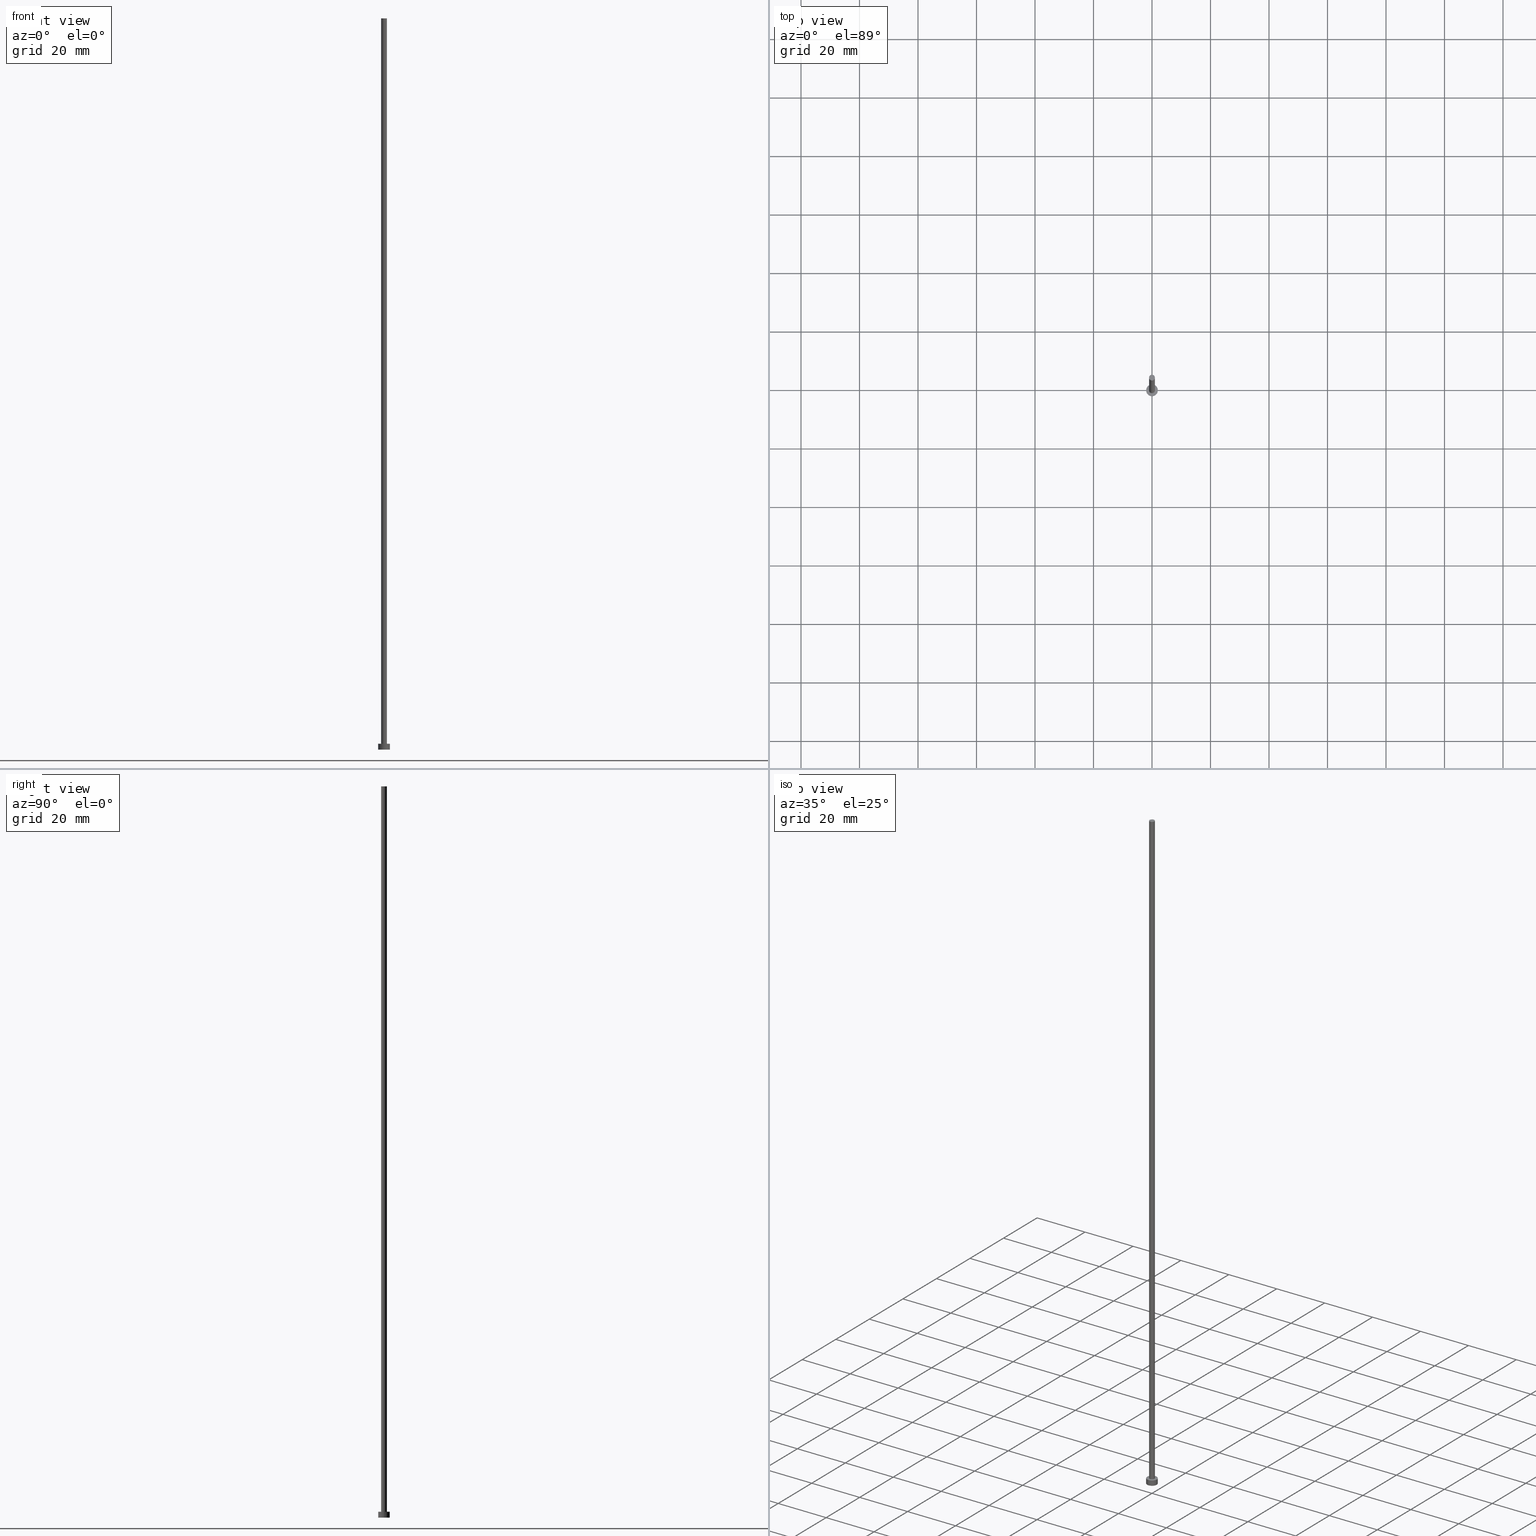
[diagram: canonical four-view strip — front | top / right | iso, engineering-drawing reading convention]
A machine part, canonical four-view strip (front | top / right | iso — engineering-drawing reading convention). The complete STEP part file that produces these views, byte-faithful:
ISO-10303-21;
HEADER;
FILE_DESCRIPTION (( 'STEP AP203' ),
    '1' );
FILE_NAME ('683c.STEP',
    '2023-02-13T15:59:17',
    ( '' ),
    ( '' ),
    'SwSTEP 2.0',
    'SolidWorks 2019',
    '' );
FILE_SCHEMA (( 'CONFIG_CONTROL_DESIGN' ));
ENDSEC;

DATA;
#1 = CARTESIAN_POINT ( 'NONE',  ( 0.000000000000000000, 0.000000000000000000, 250.0000000000000000 ) ) ;
#2 = DIRECTION ( 'NONE',  ( 1.000000000000000000, 0.000000000000000000, 0.000000000000000000 ) ) ;
#3 = ADVANCED_FACE ( 'NONE', ( #188, #170 ), #250, .T. ) ;
#4 = CC_DESIGN_SECURITY_CLASSIFICATION ( #212, ( #181 ) ) ;
#5 =( LENGTH_UNIT ( ) NAMED_UNIT ( * ) SI_UNIT ( .MILLI., .METRE. ) );
#6 = CIRCLE ( 'NONE', #130, 1.000000000000000000 ) ;
#7 = APPROVAL_STATUS ( 'not_yet_approved' ) ;
#8 = CIRCLE ( 'NONE', #129, 1.000000000000000000 ) ;
#9 = PERSON_AND_ORGANIZATION_ROLE ( 'classification_officer' ) ;
#10 = DATE_AND_TIME ( #183, #81 ) ;
#11 = ORIENTED_EDGE ( 'NONE', *, *, #229, .F. ) ;
#12 = ORIENTED_EDGE ( 'NONE', *, *, #214, .F. ) ;
#13 = AXIS2_PLACEMENT_3D ( 'NONE', #71, #153, #227 ) ;
#14 = ORIENTED_EDGE ( 'NONE', *, *, #84, .T. ) ;
#15 = LOCAL_TIME ( 16, 59, 17.00000000000000000, #108 ) ;
#16 = CARTESIAN_POINT ( 'NONE',  ( 0.000000000000000000, 0.000000000000000000, 0.000000000000000000 ) ) ;
#17 = CYLINDRICAL_SURFACE ( 'NONE', #57, 1.000000000000000000 ) ;
#18 = SHAPE_DEFINITION_REPRESENTATION ( #172, #109 ) ;
#19 = DIRECTION ( 'NONE',  ( 0.000000000000000000, 0.000000000000000000, 1.000000000000000000 ) ) ;
#20 = CARTESIAN_POINT ( 'NONE',  ( 2.000000000000000000, 2.449293598294706414E-16, 0.000000000000000000 ) ) ;
#21 = LINE ( 'NONE', #102, #220 ) ;
#22 = DIRECTION ( 'NONE',  ( 0.000000000000000000, 0.000000000000000000, 1.000000000000000000 ) ) ;
#23 = PERSON_AND_ORGANIZATION ( #248, #163 ) ;
#24 = EDGE_CURVE ( 'NONE', #114, #112, #200, .T. ) ;
#25 = PERSON_AND_ORGANIZATION_ROLE ( 'creator' ) ;
#26 = APPROVAL_ROLE ( '' ) ;
#27 = AXIS2_PLACEMENT_3D ( 'NONE', #196, #98, #210 ) ;
#28 = ADVANCED_FACE ( 'NONE', ( #64 ), #222, .T. ) ;
#29 = VERTEX_POINT ( 'NONE', #211 ) ;
#30 = ORIENTED_EDGE ( 'NONE', *, *, #235, .F. ) ;
#31 = EDGE_CURVE ( 'NONE', #226, #29, #76, .T. ) ;
#32 = ORIENTED_EDGE ( 'NONE', *, *, #235, .T. ) ;
#33 = DIRECTION ( 'NONE',  ( 1.000000000000000000, 0.000000000000000000, 0.000000000000000000 ) ) ;
#34 = UNCERTAINTY_MEASURE_WITH_UNIT (LENGTH_MEASURE( 1.000000000000000082E-05 ), #5, 'distance_accuracy_value', 'NONE');
#35 = DIRECTION ( 'NONE',  ( -0.000000000000000000, -0.000000000000000000, -1.000000000000000000 ) ) ;
#36 = DIRECTION ( 'NONE',  ( -0.000000000000000000, -0.000000000000000000, -1.000000000000000000 ) ) ;
#37 = LOCAL_TIME ( 16, 59, 17.00000000000000000, #147 ) ;
#38 = EDGE_CURVE ( 'NONE', #29, #247, #139, .T. ) ;
#39 = CARTESIAN_POINT ( 'NONE',  ( 0.000000000000000000, 0.000000000000000000, 250.0000000000000000 ) ) ;
#40 = DIRECTION ( 'NONE',  ( 1.000000000000000000, 0.000000000000000000, -0.000000000000000000 ) ) ;
#41 = APPROVAL ( #42, 'NEUR�EN�' ) ;
#42 = APPROVAL_STATUS ( 'not_yet_approved' ) ;
#43 = CARTESIAN_POINT ( 'NONE',  ( -2.000000000000000000, 0.000000000000000000, 0.000000000000000000 ) ) ;
#44 = DIRECTION ( 'NONE',  ( 1.000000000000000000, 0.000000000000000000, 0.000000000000000000 ) ) ;
#45 = PERSON_AND_ORGANIZATION_ROLE ( 'creator' ) ;
#46 = AXIS2_PLACEMENT_3D ( 'NONE', #79, #177, #118 ) ;
#47 = ORIENTED_EDGE ( 'NONE', *, *, #204, .F. ) ;
#48 = ORIENTED_EDGE ( 'NONE', *, *, #204, .T. ) ;
#49 = EDGE_LOOP ( 'NONE', ( #206, #184, #187, #117 ) ) ;
#50 = CARTESIAN_POINT ( 'NONE',  ( 0.000000000000000000, 0.000000000000000000, 2.000000000000000000 ) ) ;
#51 = LINE ( 'NONE', #97, #159 ) ;
#52 = CYLINDRICAL_SURFACE ( 'NONE', #141, 2.000000000000000000 ) ;
#53 = DIRECTION ( 'NONE',  ( -1.000000000000000000, 0.000000000000000000, 0.000000000000000000 ) ) ;
#54 = DIRECTION ( 'NONE',  ( -0.000000000000000000, -0.000000000000000000, -1.000000000000000000 ) ) ;
#55 = CC_DESIGN_APPROVAL ( #99, ( #179 ) ) ;
#56 = CARTESIAN_POINT ( 'NONE',  ( 0.000000000000000000, 0.000000000000000000, 2.000000000000000000 ) ) ;
#57 = AXIS2_PLACEMENT_3D ( 'NONE', #1, #36, #192 ) ;
#58 = APPROVAL_DATE_TIME ( #242, #99 ) ;
#59 = PERSON_AND_ORGANIZATION ( #248, #163 ) ;
#60 = APPROVAL_DATE_TIME ( #144, #41 ) ;
#61 = DATE_AND_TIME ( #219, #37 ) ;
#62 = APPROVAL_STATUS ( 'not_yet_approved' ) ;
#63 = APPROVAL_ROLE ( '' ) ;
#64 = FACE_OUTER_BOUND ( 'NONE', #244, .T. ) ;
#65 = ADVANCED_FACE ( 'NONE', ( #213 ), #17, .T. ) ;
#66 = ORIENTED_EDGE ( 'NONE', *, *, #80, .T. ) ;
#67 = VERTEX_POINT ( 'NONE', #253 ) ;
#68 = APPROVAL_PERSON_ORGANIZATION ( #59, #41, #124 ) ;
#69 = ORIENTED_EDGE ( 'NONE', *, *, #113, .T. ) ;
#70 = DESIGN_CONTEXT ( 'detailed design', #151, 'design' ) ;
#71 = CARTESIAN_POINT ( 'NONE',  ( 0.000000000000000000, 0.000000000000000000, 2.000000000000000000 ) ) ;
#72 = CC_DESIGN_PERSON_AND_ORGANIZATION_ASSIGNMENT ( #238, #25, ( #179 ) ) ;
#73 = CARTESIAN_POINT ( 'NONE',  ( 0.000000000000000000, 0.000000000000000000, 2.000000000000000000 ) ) ;
#74 = DIRECTION ( 'NONE',  ( -0.000000000000000000, -0.000000000000000000, -1.000000000000000000 ) ) ;
#75 = CIRCLE ( 'NONE', #46, 2.000000000000000000 ) ;
#76 = CIRCLE ( 'NONE', #96, 2.000000000000000000 ) ;
#77 = CARTESIAN_POINT ( 'NONE',  ( 2.000000000000000000, 2.449293598294706414E-16, 2.000000000000000000 ) ) ;
#78 = LINE ( 'NONE', #121, #149 ) ;
#79 = CARTESIAN_POINT ( 'NONE',  ( 0.000000000000000000, 0.000000000000000000, 0.000000000000000000 ) ) ;
#80 = EDGE_CURVE ( 'NONE', #112, #114, #6, .T. ) ;
#81 = LOCAL_TIME ( 16, 59, 17.00000000000000000, #175 ) ;
#82 = AXIS2_PLACEMENT_3D ( 'NONE', #39, #35, #53 ) ;
#83 = CARTESIAN_POINT ( 'NONE',  ( 0.000000000000000000, 0.000000000000000000, 250.0000000000000000 ) ) ;
#84 = EDGE_CURVE ( 'NONE', #91, #112, #78, .T. ) ;
#85 = PERSON_AND_ORGANIZATION ( #248, #163 ) ;
#86 = COORDINATED_UNIVERSAL_TIME_OFFSET ( 1, 0, .AHEAD. ) ;
#87 = APPROVAL_DATE_TIME ( #10, #246 ) ;
#88 = EDGE_LOOP ( 'NONE', ( #169, #111 ) ) ;
#89 = ADVANCED_FACE ( 'NONE', ( #173 ), #52, .T. ) ;
#90 = AXIS2_PLACEMENT_3D ( 'NONE', #56, #135, #209 ) ;
#91 = VERTEX_POINT ( 'NONE', #154 ) ;
#92 = ORIENTED_EDGE ( 'NONE', *, *, #214, .T. ) ;
#93 = LOCAL_TIME ( 16, 59, 17.00000000000000000, #86 ) ;
#94 = CC_DESIGN_PERSON_AND_ORGANIZATION_ASSIGNMENT ( #23, #45, ( #181 ) ) ;
#95 = ORIENTED_EDGE ( 'NONE', *, *, #38, .F. ) ;
#96 = AXIS2_PLACEMENT_3D ( 'NONE', #155, #174, #2 ) ;
#97 = CARTESIAN_POINT ( 'NONE',  ( -1.000000000000000000, 0.000000000000000000, 250.0000000000000000 ) ) ;
#98 = DIRECTION ( 'NONE',  ( 0.000000000000000000, 0.000000000000000000, 1.000000000000000000 ) ) ;
#99 = APPROVAL ( #62, 'NEUR�EN�' ) ;
#100 = DIRECTION ( 'NONE',  ( 1.000000000000000000, 0.000000000000000000, -0.000000000000000000 ) ) ;
#101 = DIRECTION ( 'NONE',  ( 1.000000000000000000, 0.000000000000000000, 0.000000000000000000 ) ) ;
#102 = CARTESIAN_POINT ( 'NONE',  ( 2.000000000000000000, 2.449293598294706414E-16, 2.000000000000000000 ) ) ;
#103 = DATE_AND_TIME ( #198, #93 ) ;
#104 = DATE_TIME_ROLE ( 'classification_date' ) ;
#105 = PERSON_AND_ORGANIZATION ( #248, #163 ) ;
#106 = DIRECTION ( 'NONE',  ( 0.000000000000000000, 0.000000000000000000, 1.000000000000000000 ) ) ;
#107 = APPROVAL_PERSON_ORGANIZATION ( #180, #246, #63 ) ;
#108 = COORDINATED_UNIVERSAL_TIME_OFFSET ( 1, 0, .AHEAD. ) ;
#109 = ADVANCED_BREP_SHAPE_REPRESENTATION ( '683c', ( #193, #254 ), #110 ) ;
#110 =( GEOMETRIC_REPRESENTATION_CONTEXT ( 3 ) GLOBAL_UNCERTAINTY_ASSIGNED_CONTEXT ( ( #34 ) ) GLOBAL_UNIT_ASSIGNED_CONTEXT ( ( #5, #237, #161 ) ) REPRESENTATION_CONTEXT ( 'NONE', 'WORKASPACE' ) );
#111 = ORIENTED_EDGE ( 'NONE', *, *, #80, .F. ) ;
#112 = VERTEX_POINT ( 'NONE', #137 ) ;
#113 = EDGE_CURVE ( 'NONE', #29, #226, #136, .T. ) ;
#114 = VERTEX_POINT ( 'NONE', #228 ) ;
#115 = PRODUCT ( '683c', '683c', '', ( #218 ) ) ;
#116 = CC_DESIGN_APPROVAL ( #246, ( #212 ) ) ;
#117 = ORIENTED_EDGE ( 'NONE', *, *, #24, .T. ) ;
#118 = DIRECTION ( 'NONE',  ( 1.000000000000000000, 0.000000000000000000, 0.000000000000000000 ) ) ;
#119 = ADVANCED_FACE ( 'NONE', ( #197 ), #232, .T. ) ;
#120 = CARTESIAN_POINT ( 'NONE',  ( 0.000000000000000000, 0.000000000000000000, 250.0000000000000000 ) ) ;
#121 = CARTESIAN_POINT ( 'NONE',  ( 1.000000000000000000, 1.224646799147353207E-16, 250.0000000000000000 ) ) ;
#122 = LOCAL_TIME ( 16, 59, 17.00000000000000000, #164 ) ;
#123 = DIRECTION ( 'NONE',  ( 0.000000000000000000, 0.000000000000000000, 1.000000000000000000 ) ) ;
#124 = APPROVAL_ROLE ( '' ) ;
#125 = AXIS2_PLACEMENT_3D ( 'NONE', #83, #106, #44 ) ;
#126 = APPLICATION_PROTOCOL_DEFINITION ( 'international standard', 'config_control_design', 1994, #146 ) ;
#127 = CC_DESIGN_DATE_AND_TIME_ASSIGNMENT ( #61, #143, ( #179 ) ) ;
#128 = PERSON_AND_ORGANIZATION_ROLE ( 'design_supplier' ) ;
#129 = AXIS2_PLACEMENT_3D ( 'NONE', #120, #123, #101 ) ;
#130 = AXIS2_PLACEMENT_3D ( 'NONE', #252, #230, #33 ) ;
#131 = CARTESIAN_POINT ( 'NONE',  ( 0.000000000000000000, 0.000000000000000000, 250.0000000000000000 ) ) ;
#132 = EDGE_LOOP ( 'NONE', ( #224, #92, #48, #95 ) ) ;
#133 = CC_DESIGN_PERSON_AND_ORGANIZATION_ASSIGNMENT ( #162, #128, ( #181 ) ) ;
#134 = DIRECTION ( 'NONE',  ( 0.000000000000000000, 0.000000000000000000, 1.000000000000000000 ) ) ;
#135 = DIRECTION ( 'NONE',  ( -0.000000000000000000, -0.000000000000000000, -1.000000000000000000 ) ) ;
#136 = CIRCLE ( 'NONE', #27, 2.000000000000000000 ) ;
#137 = CARTESIAN_POINT ( 'NONE',  ( 1.000000000000000000, 1.224646799147353207E-16, 2.000000000000000000 ) ) ;
#138 = FACE_OUTER_BOUND ( 'NONE', #132, .T. ) ;
#139 = LINE ( 'NONE', #255, #236 ) ;
#140 = CC_DESIGN_PERSON_AND_ORGANIZATION_ASSIGNMENT ( #182, #9, ( #212 ) ) ;
#141 = AXIS2_PLACEMENT_3D ( 'NONE', #73, #74, #157 ) ;
#142 = CYLINDRICAL_SURFACE ( 'NONE', #90, 2.000000000000000000 ) ;
#143 = DATE_TIME_ROLE ( 'creation_date' ) ;
#144 = DATE_AND_TIME ( #217, #15 ) ;
#145 = CLOSED_SHELL ( 'NONE', ( #65, #195, #89, #3, #221, #119, #28 ) ) ;
#146 = APPLICATION_CONTEXT ( 'configuration controlled 3d designs of mechanical parts and assemblies' ) ;
#147 = COORDINATED_UNIVERSAL_TIME_OFFSET ( 1, 0, .AHEAD. ) ;
#148 = DIRECTION ( 'NONE',  ( 1.000000000000000000, 0.000000000000000000, 0.000000000000000000 ) ) ;
#149 = VECTOR ( 'NONE', #54, 1000.000000000000000 ) ;
#150 = ORIENTED_EDGE ( 'NONE', *, *, #38, .T. ) ;
#151 = APPLICATION_CONTEXT ( 'configuration controlled 3d designs of mechanical parts and assemblies' ) ;
#152 = ORIENTED_EDGE ( 'NONE', *, *, #171, .F. ) ;
#153 = DIRECTION ( 'NONE',  ( 0.000000000000000000, 0.000000000000000000, 1.000000000000000000 ) ) ;
#154 = CARTESIAN_POINT ( 'NONE',  ( 1.000000000000000000, 1.224646799147353207E-16, 250.0000000000000000 ) ) ;
#155 = CARTESIAN_POINT ( 'NONE',  ( 0.000000000000000000, 0.000000000000000000, 2.000000000000000000 ) ) ;
#156 = DIRECTION ( 'NONE',  ( 1.000000000000000000, 0.000000000000000000, 0.000000000000000000 ) ) ;
#157 = DIRECTION ( 'NONE',  ( -1.000000000000000000, 0.000000000000000000, 0.000000000000000000 ) ) ;
#158 = DIRECTION ( 'NONE',  ( -0.000000000000000000, -0.000000000000000000, -1.000000000000000000 ) ) ;
#159 = VECTOR ( 'NONE', #178, 1000.000000000000000 ) ;
#160 = PRODUCT_RELATED_PRODUCT_CATEGORY ( 'detail', '', ( #115 ) ) ;
#161 =( NAMED_UNIT ( * ) SI_UNIT ( $, .STERADIAN. ) SOLID_ANGLE_UNIT ( ) );
#162 = PERSON_AND_ORGANIZATION ( #248, #163 ) ;
#163 = ORGANIZATION ( 'NEUR�EN�', 'NEUR�EN�', '' ) ;
#164 = COORDINATED_UNIVERSAL_TIME_OFFSET ( 1, 0, .AHEAD. ) ;
#165 = APPLICATION_PROTOCOL_DEFINITION ( 'international standard', 'config_control_design', 1994, #151 ) ;
#166 = EDGE_LOOP ( 'NONE', ( #30, #14, #66, #152 ) ) ;
#167 = VERTEX_POINT ( 'NONE', #20 ) ;
#168 = ORIENTED_EDGE ( 'NONE', *, *, #229, .T. ) ;
#169 = ORIENTED_EDGE ( 'NONE', *, *, #24, .F. ) ;
#170 = FACE_OUTER_BOUND ( 'NONE', #207, .T. ) ;
#171 = EDGE_CURVE ( 'NONE', #67, #114, #51, .T. ) ;
#172 = PRODUCT_DEFINITION_SHAPE ( 'NONE', 'NONE',  #179 ) ;
#173 = FACE_OUTER_BOUND ( 'NONE', #223, .T. ) ;
#174 = DIRECTION ( 'NONE',  ( 0.000000000000000000, 0.000000000000000000, 1.000000000000000000 ) ) ;
#175 = COORDINATED_UNIVERSAL_TIME_OFFSET ( 1, 0, .AHEAD. ) ;
#176 = DIRECTION ( 'NONE',  ( 0.000000000000000000, 0.000000000000000000, 1.000000000000000000 ) ) ;
#177 = DIRECTION ( 'NONE',  ( 0.000000000000000000, 0.000000000000000000, 1.000000000000000000 ) ) ;
#178 = DIRECTION ( 'NONE',  ( -0.000000000000000000, -0.000000000000000000, -1.000000000000000000 ) ) ;
#179 = PRODUCT_DEFINITION ( 'NEZN�M�', '', #181, #70 ) ;
#180 = PERSON_AND_ORGANIZATION ( #248, #163 ) ;
#181 = PRODUCT_DEFINITION_FORMATION_WITH_SPECIFIED_SOURCE ( 'LIBOVOLN�', '', #115, .NOT_KNOWN. ) ;
#182 = PERSON_AND_ORGANIZATION ( #248, #163 ) ;
#183 = CALENDAR_DATE ( 2023, 13, 2 ) ;
#184 = ORIENTED_EDGE ( 'NONE', *, *, #190, .F. ) ;
#185 = CC_DESIGN_DATE_AND_TIME_ASSIGNMENT ( #103, #104, ( #212 ) ) ;
#186 = ORIENTED_EDGE ( 'NONE', *, *, #113, .F. ) ;
#187 = ORIENTED_EDGE ( 'NONE', *, *, #171, .T. ) ;
#188 = FACE_BOUND ( 'NONE', #88, .T. ) ;
#189 = CIRCLE ( 'NONE', #233, 2.000000000000000000 ) ;
#190 = EDGE_CURVE ( 'NONE', #67, #91, #8, .T. ) ;
#191 = DIRECTION ( 'NONE',  ( -0.000000000000000000, -0.000000000000000000, -1.000000000000000000 ) ) ;
#192 = DIRECTION ( 'NONE',  ( -1.000000000000000000, 0.000000000000000000, 0.000000000000000000 ) ) ;
#193 = MANIFOLD_SOLID_BREP ( 'P�idat vysunut�m3', #145 ) ;
#194 = CARTESIAN_POINT ( 'NONE',  ( 0.000000000000000000, 0.000000000000000000, 0.000000000000000000 ) ) ;
#195 = ADVANCED_FACE ( 'NONE', ( #138 ), #142, .T. ) ;
#196 = CARTESIAN_POINT ( 'NONE',  ( 0.000000000000000000, 0.000000000000000000, 2.000000000000000000 ) ) ;
#197 = FACE_OUTER_BOUND ( 'NONE', #49, .T. ) ;
#198 = CALENDAR_DATE ( 2023, 13, 2 ) ;
#199 = PERSON_AND_ORGANIZATION_ROLE ( 'design_owner' ) ;
#200 = CIRCLE ( 'NONE', #240, 1.000000000000000000 ) ;
#201 = CARTESIAN_POINT ( 'NONE',  ( 0.000000000000000000, 0.000000000000000000, 0.000000000000000000 ) ) ;
#202 = SECURITY_CLASSIFICATION_LEVEL ( 'unclassified' ) ;
#203 = CIRCLE ( 'NONE', #125, 1.000000000000000000 ) ;
#204 = EDGE_CURVE ( 'NONE', #167, #247, #75, .T. ) ;
#205 = EDGE_LOOP ( 'NONE', ( #11, #47 ) ) ;
#206 = ORIENTED_EDGE ( 'NONE', *, *, #84, .F. ) ;
#207 = EDGE_LOOP ( 'NONE', ( #69, #245 ) ) ;
#208 = ORIENTED_EDGE ( 'NONE', *, *, #190, .T. ) ;
#209 = DIRECTION ( 'NONE',  ( -1.000000000000000000, 0.000000000000000000, 0.000000000000000000 ) ) ;
#210 = DIRECTION ( 'NONE',  ( 1.000000000000000000, 0.000000000000000000, 0.000000000000000000 ) ) ;
#211 = CARTESIAN_POINT ( 'NONE',  ( -2.000000000000000000, 0.000000000000000000, 2.000000000000000000 ) ) ;
#212 = SECURITY_CLASSIFICATION ( '', '', #202 ) ;
#213 = FACE_OUTER_BOUND ( 'NONE', #166, .T. ) ;
#214 = EDGE_CURVE ( 'NONE', #226, #167, #21, .T. ) ;
#215 = FACE_OUTER_BOUND ( 'NONE', #205, .T. ) ;
#216 = DIRECTION ( 'NONE',  ( 1.000000000000000000, 0.000000000000000000, 0.000000000000000000 ) ) ;
#217 = CALENDAR_DATE ( 2023, 13, 2 ) ;
#218 = MECHANICAL_CONTEXT ( 'NONE', #146, 'mechanical' ) ;
#219 = CALENDAR_DATE ( 2023, 13, 2 ) ;
#220 = VECTOR ( 'NONE', #158, 1000.000000000000000 ) ;
#221 = ADVANCED_FACE ( 'NONE', ( #215 ), #234, .F. ) ;
#222 = PLANE ( 'NONE',  #251 ) ;
#223 = EDGE_LOOP ( 'NONE', ( #12, #186, #150, #168 ) ) ;
#224 = ORIENTED_EDGE ( 'NONE', *, *, #31, .F. ) ;
#225 = APPROVAL_PERSON_ORGANIZATION ( #85, #99, #26 ) ;
#226 = VERTEX_POINT ( 'NONE', #77 ) ;
#227 = DIRECTION ( 'NONE',  ( 1.000000000000000000, 0.000000000000000000, -0.000000000000000000 ) ) ;
#228 = CARTESIAN_POINT ( 'NONE',  ( -1.000000000000000000, 0.000000000000000000, 2.000000000000000000 ) ) ;
#229 = EDGE_CURVE ( 'NONE', #247, #167, #189, .T. ) ;
#230 = DIRECTION ( 'NONE',  ( 0.000000000000000000, 0.000000000000000000, 1.000000000000000000 ) ) ;
#231 = DIRECTION ( 'NONE',  ( 0.000000000000000000, 0.000000000000000000, 1.000000000000000000 ) ) ;
#232 = CYLINDRICAL_SURFACE ( 'NONE', #82, 1.000000000000000000 ) ;
#233 = AXIS2_PLACEMENT_3D ( 'NONE', #16, #176, #156 ) ;
#234 = PLANE ( 'NONE',  #239 ) ;
#235 = EDGE_CURVE ( 'NONE', #91, #67, #203, .T. ) ;
#236 = VECTOR ( 'NONE', #191, 1000.000000000000000 ) ;
#237 =( NAMED_UNIT ( * ) PLANE_ANGLE_UNIT ( ) SI_UNIT ( $, .RADIAN. ) );
#238 = PERSON_AND_ORGANIZATION ( #248, #163 ) ;
#239 = AXIS2_PLACEMENT_3D ( 'NONE', #194, #19, #40 ) ;
#240 = AXIS2_PLACEMENT_3D ( 'NONE', #50, #134, #148 ) ;
#241 = CALENDAR_DATE ( 2023, 13, 2 ) ;
#242 = DATE_AND_TIME ( #241, #122 ) ;
#243 = CC_DESIGN_PERSON_AND_ORGANIZATION_ASSIGNMENT ( #105, #199, ( #115 ) ) ;
#244 = EDGE_LOOP ( 'NONE', ( #208, #32 ) ) ;
#245 = ORIENTED_EDGE ( 'NONE', *, *, #31, .T. ) ;
#246 = APPROVAL ( #7, 'NEUR�EN�' ) ;
#247 = VERTEX_POINT ( 'NONE', #43 ) ;
#248 = PERSON ( 'NEUR�EN�', 'NEUR�EN�', 'NEUR�EN�', ('NEUR�EN�'), ('NEUR�EN�'), ('NEUR�EN�') ) ;
#249 = CC_DESIGN_APPROVAL ( #41, ( #181 ) ) ;
#250 = PLANE ( 'NONE',  #13 ) ;
#251 = AXIS2_PLACEMENT_3D ( 'NONE', #131, #231, #100 ) ;
#252 = CARTESIAN_POINT ( 'NONE',  ( 0.000000000000000000, 0.000000000000000000, 2.000000000000000000 ) ) ;
#253 = CARTESIAN_POINT ( 'NONE',  ( -1.000000000000000000, 0.000000000000000000, 250.0000000000000000 ) ) ;
#254 = AXIS2_PLACEMENT_3D ( 'NONE', #201, #22, #216 ) ;
#255 = CARTESIAN_POINT ( 'NONE',  ( -2.000000000000000000, 0.000000000000000000, 2.000000000000000000 ) ) ;
ENDSEC;
END-ISO-10303-21;
